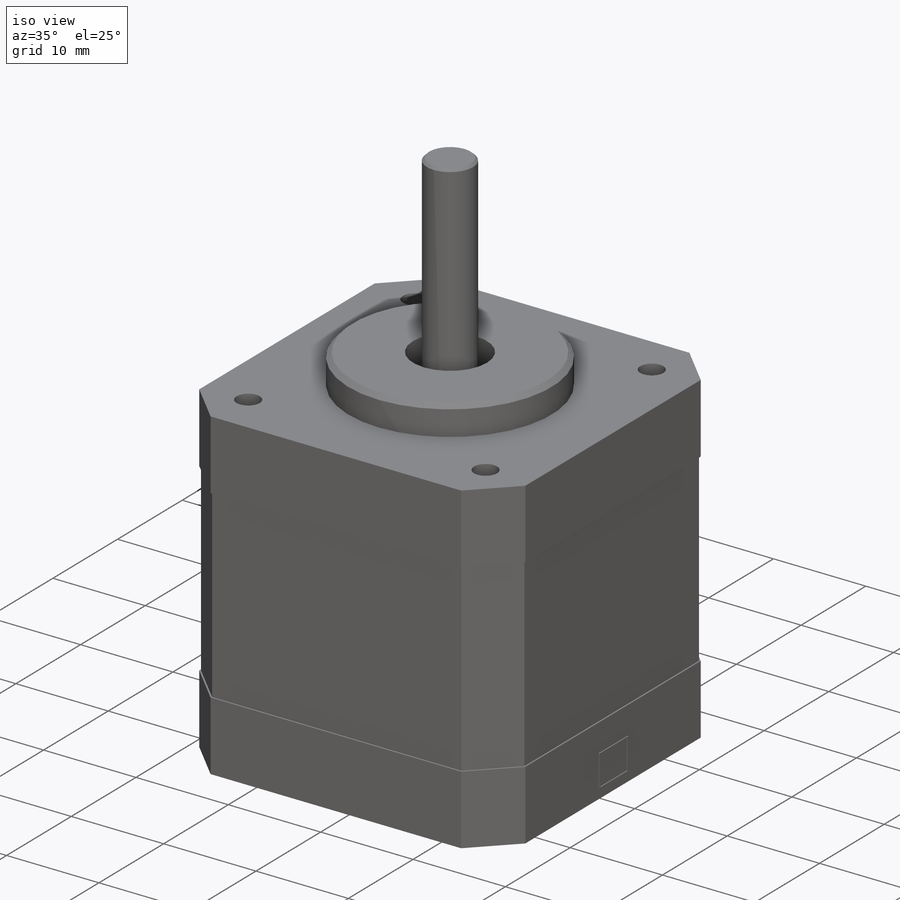
[diagram: iso view]
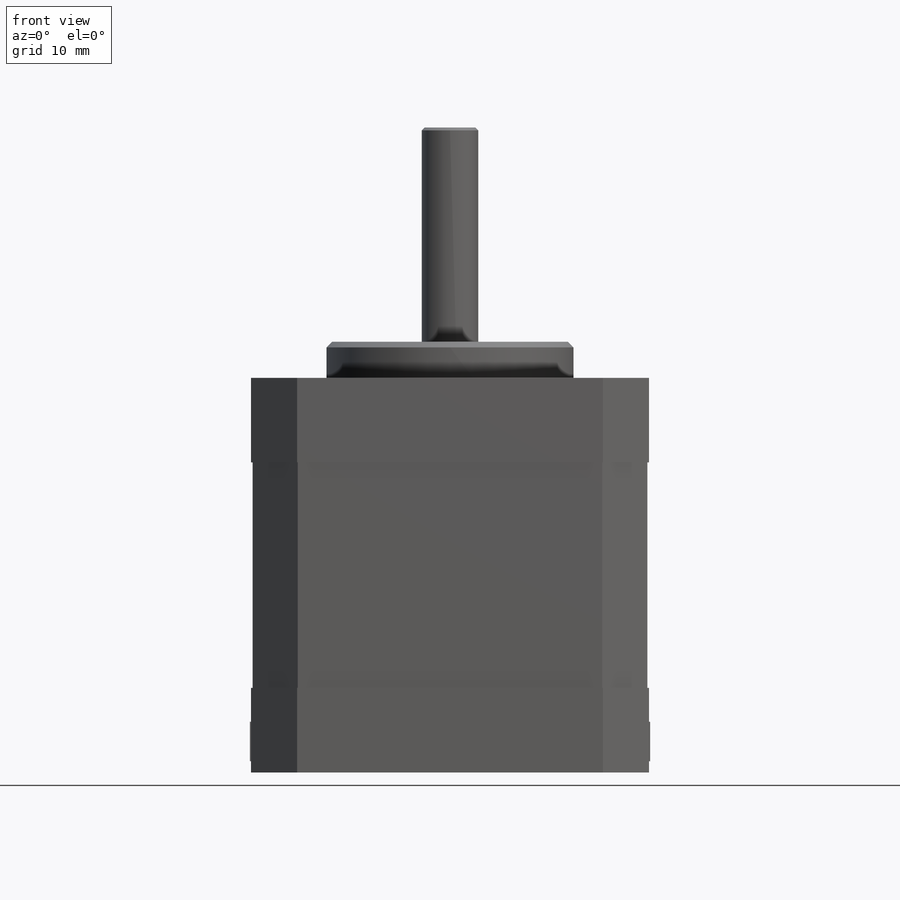
[diagram: front view]
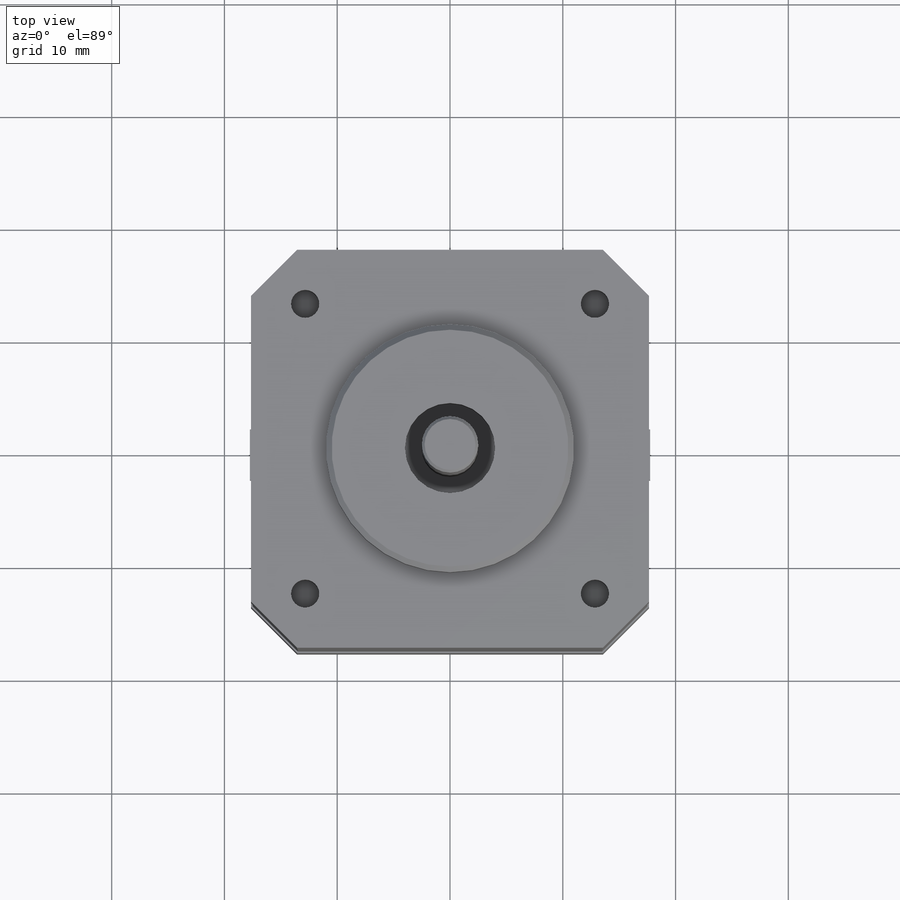
[diagram: top view]
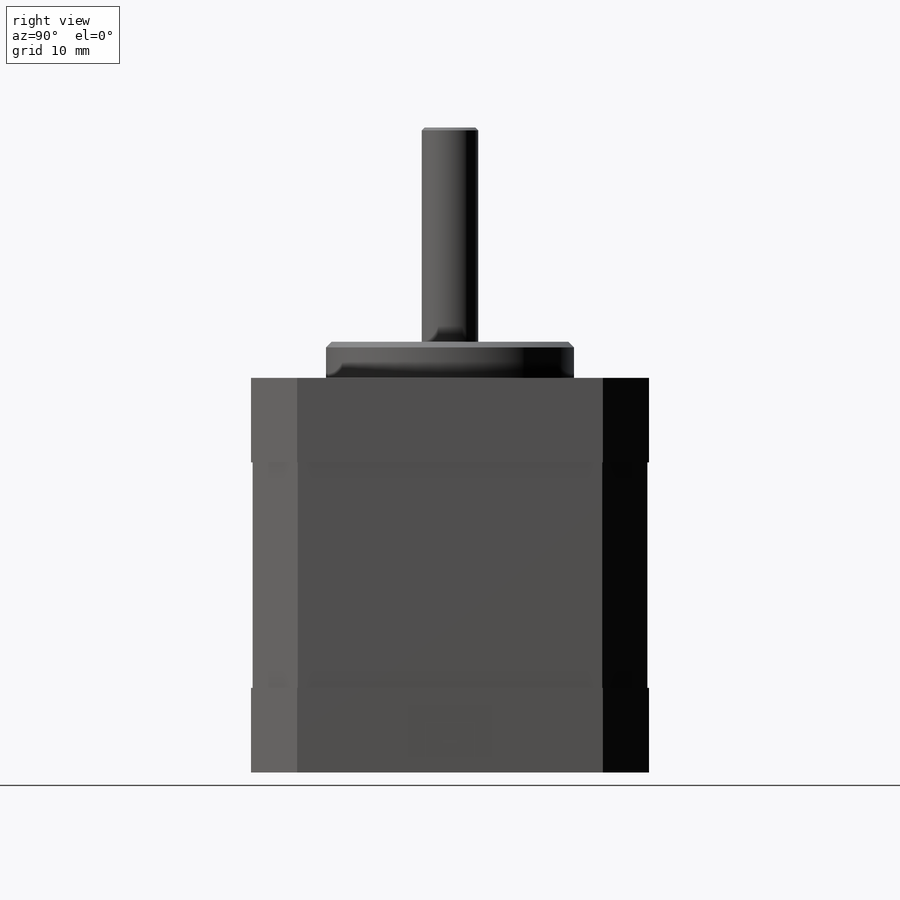
[diagram: right view]
SOLIDWORKS PART (.sldprt)
format: sldprt  version: not decoded by parser v0  size: 1,036,288 bytes
history: native  units: mm
features: sketch x20, plane x11, extrude x9, thread x6, chamfer x3, move_body x3, sweep x3, cut_extrude x2, delete_body x2, material x1, mirror x1 + 1 further entry (+14 scaffold rows collapsed; 3 parser-record rows omitted)
feature tree (79):
  scaffold x14  (default folders/planes/origin — collapsed)
  material  "acero"
  plane  "Alzado"
  plane  "Planta"
  plane  "Vista lateral"
  sketch  "Croquis1"  dims[D1=35.0mm]
  extrude  "Saliente-Extruir1"  Depth=35mm
  chamfer  "Chaflán1"  Distance=4mm Angle=45deg
  sketch  "Croquis3"  dims[D1=22.0mm]
  cut_extrude  "Cortar-Extruir1"  Depth=0.4mm
  plane  "Plano1"  Offset=38.2mm
  sketch  "Croquis4"  dims[D1=22.0mm D2=8.0mm]
  extrude  "Saliente-Extruir2"  [1 undecoded]
  chamfer  "Chaflán2"  Distance=0.5mm Angle=45deg
  sketch  "Croquis5"  dims[D1=5.0mm]
  extrude  "Saliente-Extruir3"  Depth=19mm
  chamfer  "Chaflán3"  Distance=0.25mm Angle=45deg
  sketch  "Croquis12"  dims[D1=0.15mm]
  extrude  "Saliente-Extruir9"  Depth=7.5mm
  sketch  "Croquis13"
  extrude  "Saliente-Extruir10"  Depth=7.5mm
  sketch  "Croquis7"  dims[D1=2.5mm D2=25.7mm]
  cut_extrude  "Cortar-Extruir3"  [1 undecoded]
  thread  "Rosca cosmética2"  Diameter=4.5mm  [1 undecoded]
  thread  "Rosca cosmética3"  Diameter=4.5mm  [1 undecoded]
  thread  "Rosca cosmética4"  Diameter=4.5mm  [1 undecoded]
  thread  "Rosca cosmética5"  Diameter=4.5mm  [1 undecoded]
  thread  "Rosca cosmética6"  Diameter=4.5mm  [1 undecoded]
  thread  "Rosca cosmética7"  Diameter=4.5mm  [1 undecoded]
  sketch  "Croquis8"  dims[D1=3.5mm D2=4.5mm D3=1.0mm D4=0.25mm]
  extrude  "Saliente-Extruir4"  Depth=0.1mm
  sketch  "Croquis9"  dims[D1=1.15mm]
  extrude  "Saliente-Extruir6"  Depth=15mm
  sketch  "Croquis10"  dims[D1=1.0mm D2=4.5mm D3=3.5mm D4=0.15mm]
  extrude  "Saliente-Extruir7"  Depth=0.1mm
  sketch  "Croquis11"  dims[c1.D1=~2.998735mm c2.D1=~33.684487deg c3.D1=~1.998735mm]
  extrude  "Saliente-Extruir8"  Depth=4.1mm
  "PHR-6"
  parser-record x3  (decoder bookkeeping rows leaked as tree rows — omitted from the tree; the rows remain in map.json)
  move_body  "Sólido-Mover/Copiar2"
  move_body  "Distancia2"
  move_body  "Distancia4"
  plane  "Plano2"  Offset=3mm
  sketch  "Croquis16"  dims[D1=10.0mm D2=4.0mm D3=17.0mm]
  plane  "Plano3"
  sketch  "Croquis17"  dims[D1=40.0mm D2=2.0mm D3=82.0mm]
  plane  "Plano4"
  sketch  "Croquis19"  dims[D1=11.0mm]
  plane  "Plano5"
  sketch  "Croquis20"  dims[D1=3.5mm]
  sketch  "Croquis3D2"  dims[D1=2.0mm D2=4.0mm]
  sweep  "Barrer2"
  plane  "Plano6"
  sketch  "Croquis21"
  sketch  "Croquis22"  dims[D1=0.6mm]
  sketch  "Croquis23"
  sketch  "Croquis24"  dims[D1=0.8mm]
  plane  "Plano7"
  sweep  "Barrer14"
  sweep  "Barrer17"
  mirror  "Simetría2"
  plane  "Plano8"
  delete_body  "Sólido-Eliminar1"
  delete_body  "Simetría8"
decode coverage: 35 of 49 modeling features carry decoded parameters; 1 rows unclassified (native names shown)
note: ~ marks probable driven/reference dimensions
note: 8 parameter values undecoded
note: suppression state not decoded; provenance and decode notes live in map.json
